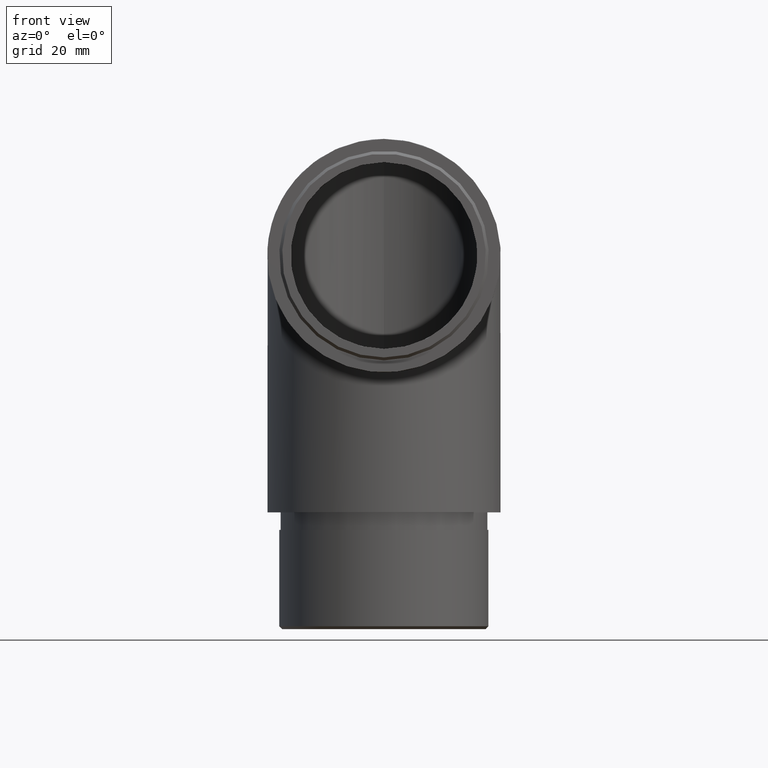
[diagram: clean part render]
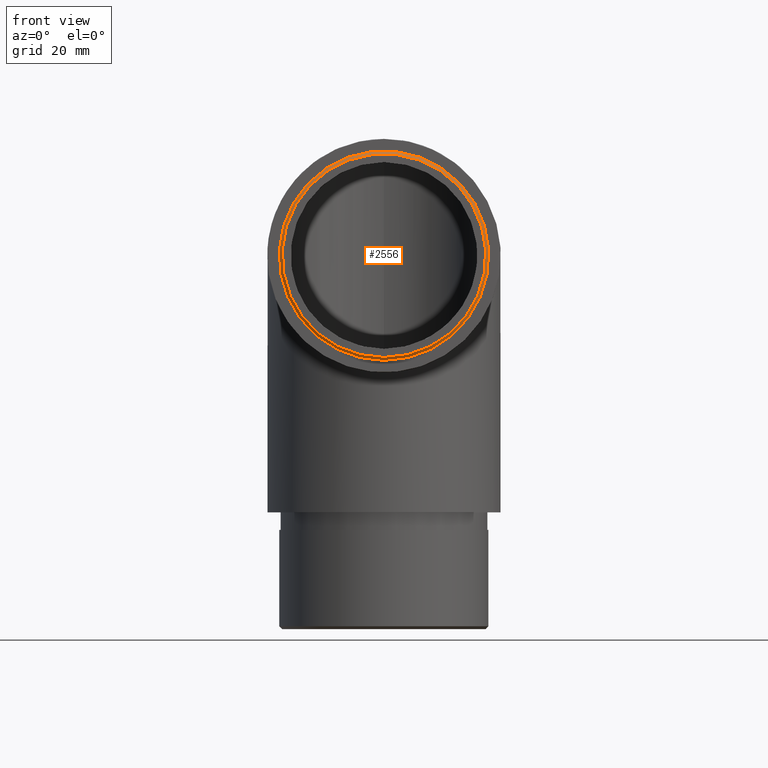
[diagram: same view with one face highlighted and labeled with its STEP entity id]
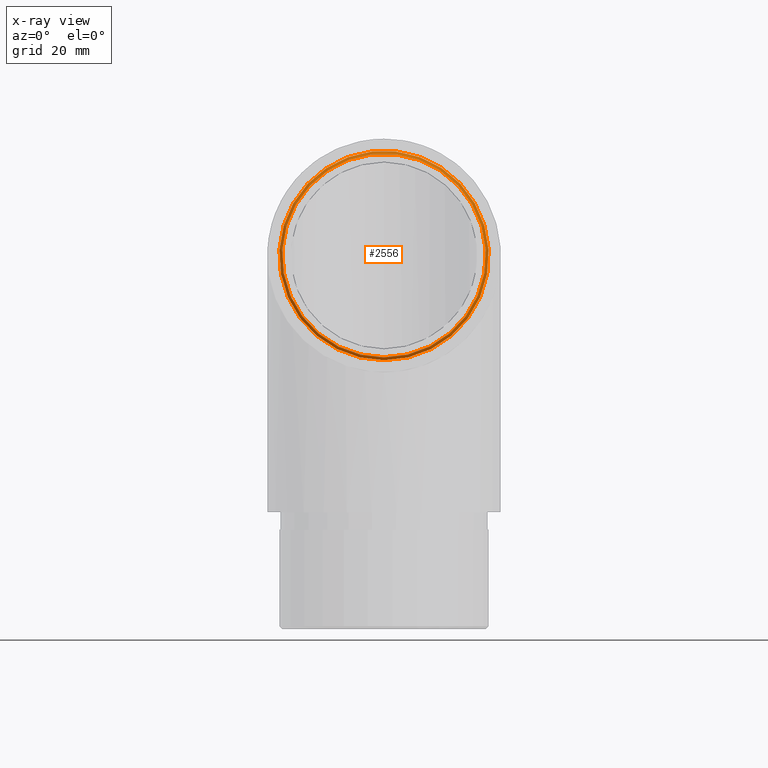
[diagram: x-ray of the same camera — body ghosted, the highlighted face saturated]
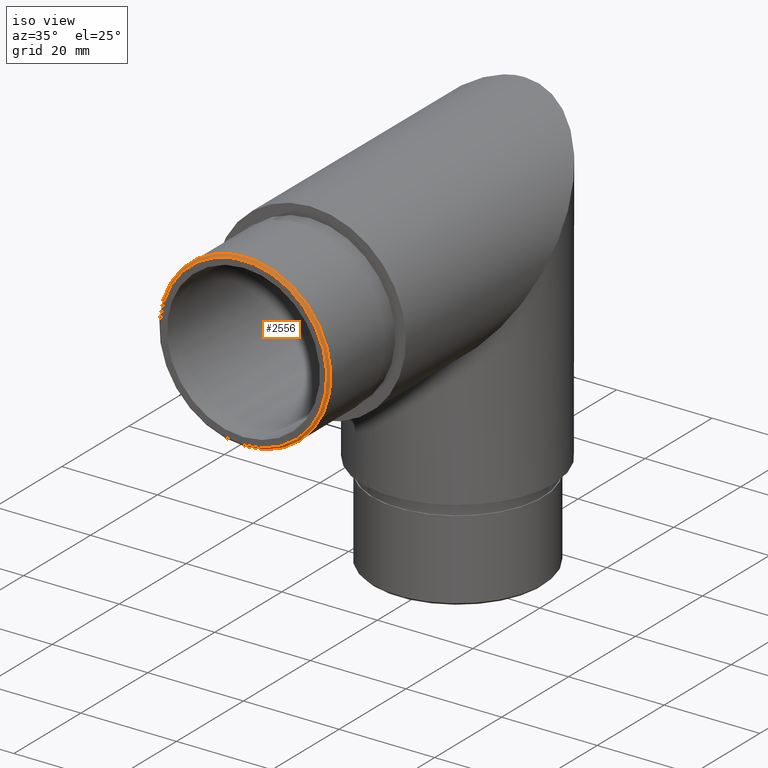
[diagram: same view with one face highlighted and labeled with its STEP entity id]
A machine part, front view. The second image highlights one B-rep face of the part: STEP entity #2556.
The next image is the same camera in x-ray: the body ghosted, the highlighted face saturated — about 0% of this face is hidden behind the body in this view.
A second angle (iso view) of the same face is appended — the face is thin or edge-on in the first view.
In plain terms, the highlighted conical surface has half-angle 45 deg.
Its self-contained STEP definition (entity closure, byte-faithful):
#74 = AXIS2_PLACEMENT_3D ( 'NONE', #4963, #11842, #6912 ) ;
#745 = VERTEX_POINT ( 'NONE', #4539 ) ;
#760 = CIRCLE ( 'NONE', #74, 17.44999999999999200 ) ;
#769 = DIRECTION ( 'NONE',  ( 0.0000000000000000000, 1.000000000000000000, 0.0000000000000000000 ) ) ;
#1202 = AXIS2_PLACEMENT_3D ( 'NONE', #5318, #7382, #8238 ) ;
#2556 = ADVANCED_FACE ( 'NONE', ( #3922, #11460 ), #9768, .T. ) ;
#3922 = FACE_OUTER_BOUND ( 'NONE', #3937, .T. ) ;
#3937 = EDGE_LOOP ( 'NONE', ( #5261 ) ) ;
#4539 = CARTESIAN_POINT ( 'NONE',  ( 0.0000000000000000000, -20.00000000000000000, -17.44999999999999200 ) ) ;
#4963 = CARTESIAN_POINT ( 'NONE',  ( 0.0000000000000000000, -20.00000000000000000, 0.0000000000000000000 ) ) ;
#5261 = ORIENTED_EDGE ( 'NONE', *, *, #11649, .F. ) ;
#5318 = CARTESIAN_POINT ( 'NONE',  ( 0.0000000000000000000, -19.49999999999998900, 0.0000000000000000000 ) ) ;
#5445 = CARTESIAN_POINT ( 'NONE',  ( 0.0000000000000000000, -19.49999999999998900, -17.94999999999999900 ) ) ;
#5829 = AXIS2_PLACEMENT_3D ( 'NONE', #10191, #769, #12442 ) ;
#6565 = VERTEX_POINT ( 'NONE', #5445 ) ;
#6912 = DIRECTION ( 'NONE',  ( 0.0000000000000000000, 0.0000000000000000000, -1.000000000000000000 ) ) ;
#7316 = EDGE_LOOP ( 'NONE', ( #8852 ) ) ;
#7382 = DIRECTION ( 'NONE',  ( 0.0000000000000000000, 1.000000000000000000, 0.0000000000000000000 ) ) ;
#8238 = DIRECTION ( 'NONE',  ( 0.0000000000000000000, 0.0000000000000000000, -1.000000000000000000 ) ) ;
#8852 = ORIENTED_EDGE ( 'NONE', *, *, #11937, .F. ) ;
#9768 = CONICAL_SURFACE ( 'NONE', #5829, 17.44999999999999200, 0.7853981633974447300 ) ;
#10191 = CARTESIAN_POINT ( 'NONE',  ( 0.0000000000000000000, -20.00000000000000000, 0.0000000000000000000 ) ) ;
#10553 = CIRCLE ( 'NONE', #1202, 17.94999999999999900 ) ;
#11460 = FACE_BOUND ( 'NONE', #7316, .T. ) ;
#11649 = EDGE_CURVE ( 'NONE', #6565, #6565, #10553, .T. ) ;
#11842 = DIRECTION ( 'NONE',  ( 0.0000000000000000000, -1.000000000000000000, 0.0000000000000000000 ) ) ;
#11937 = EDGE_CURVE ( 'NONE', #745, #745, #760, .T. ) ;
#12442 = DIRECTION ( 'NONE',  ( 0.0000000000000000000, 0.0000000000000000000, 1.000000000000000000 ) ) ;